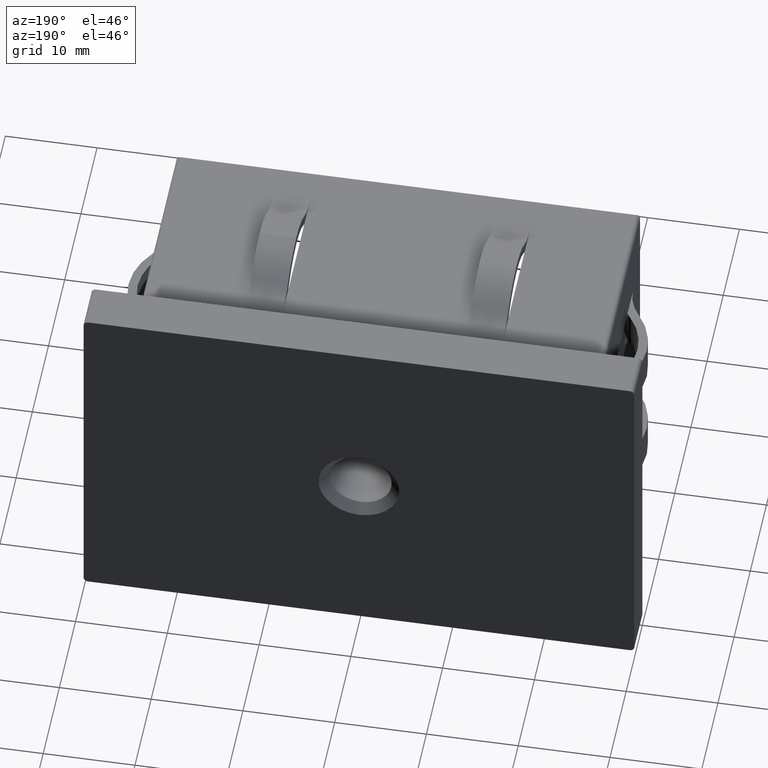
[diagram: clean part render]
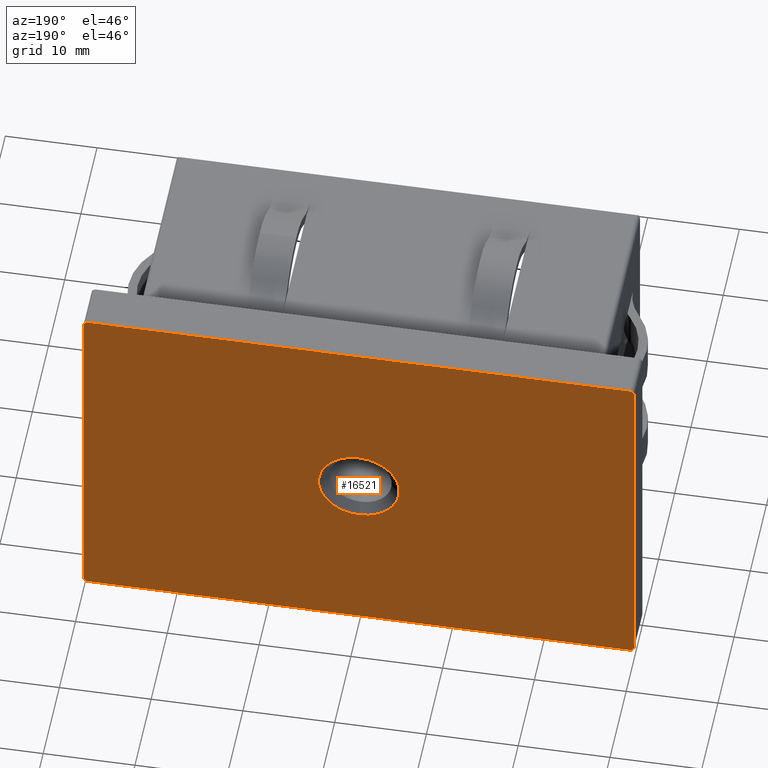
[diagram: same view with one face highlighted and labeled with its STEP entity id]
A machine part, auxiliary view. The second image highlights one B-rep face of the part: STEP entity #16521.
In plain terms, the highlighted planar face has unit normal (0, 1, 0).
Its self-contained STEP definition (entity closure, byte-faithful):
#38 = LINE ( 'NONE', #16694, #2755 ) ;
#179 = CIRCLE ( 'NONE', #4041, 4.399999999999973700 ) ;
#277 = DIRECTION ( 'NONE',  ( 0.0000000000000000000, 0.0000000000000000000, 1.000000000000000000 ) ) ;
#310 = DIRECTION ( 'NONE',  ( -1.734723475976807100E-016, -0.0000000000000000000, -1.000000000000000000 ) ) ;
#406 = LINE ( 'NONE', #16994, #10997 ) ;
#865 = DIRECTION ( 'NONE',  ( 0.0000000000000000000, 1.000000000000000000, 0.0000000000000000000 ) ) ;
#993 = ORIENTED_EDGE ( 'NONE', *, *, #12320, .T. ) ;
#1088 = DIRECTION ( 'NONE',  ( 1.734723475976807100E-016, 0.0000000000000000000, 1.000000000000000000 ) ) ;
#1309 = AXIS2_PLACEMENT_3D ( 'NONE', #6147, #14780, #277 ) ;
#1477 = VERTEX_POINT ( 'NONE', #7355 ) ;
#1671 = CARTESIAN_POINT ( 'NONE',  ( -29.99999999999998900, 5.000000000000000000, 20.00000000000000400 ) ) ;
#1796 = VERTEX_POINT ( 'NONE', #6829 ) ;
#2138 = EDGE_CURVE ( 'NONE', #14272, #13020, #4426, .T. ) ;
#2272 = CARTESIAN_POINT ( 'NONE',  ( -29.49999999999998900, 5.000000000000000000, 20.00000000000000400 ) ) ;
#2755 = VECTOR ( 'NONE', #1088, 1000.000000000000000 ) ;
#3721 = EDGE_CURVE ( 'NONE', #4588, #1796, #14063, .T. ) ;
#3891 = DIRECTION ( 'NONE',  ( 0.0000000000000000000, 0.0000000000000000000, 1.000000000000000000 ) ) ;
#4016 = CARTESIAN_POINT ( 'NONE',  ( 0.0000000000000000000, 5.000000000000000000, 0.0000000000000000000 ) ) ;
#4041 = AXIS2_PLACEMENT_3D ( 'NONE', #5281, #16830, #9675 ) ;
#4426 = CIRCLE ( 'NONE', #13336, 0.5000000000000004400 ) ;
#4567 = DIRECTION ( 'NONE',  ( 1.000000000000000000, 0.0000000000000000000, 0.0000000000000000000 ) ) ;
#4588 = VERTEX_POINT ( 'NONE', #10763 ) ;
#5094 = CARTESIAN_POINT ( 'NONE',  ( 29.50000000000000400, 5.000000000000000000, -19.49999999999999600 ) ) ;
#5113 = FACE_OUTER_BOUND ( 'NONE', #6790, .T. ) ;
#5224 = CIRCLE ( 'NONE', #17963, 4.399999999999973700 ) ;
#5281 = CARTESIAN_POINT ( 'NONE',  ( 0.0000000000000000000, 5.000000000000000000, 0.0000000000000000000 ) ) ;
#5712 = CIRCLE ( 'NONE', #15938, 0.5000000000000004400 ) ;
#5779 = ORIENTED_EDGE ( 'NONE', *, *, #13058, .T. ) ;
#5845 = EDGE_CURVE ( 'NONE', #12889, #16185, #15791, .T. ) ;
#5875 = ORIENTED_EDGE ( 'NONE', *, *, #5845, .T. ) ;
#6054 = CARTESIAN_POINT ( 'NONE',  ( 30.00000000000000000, 5.000000000000000000, -19.99999999999999600 ) ) ;
#6147 = CARTESIAN_POINT ( 'NONE',  ( -29.49999999999999600, 5.000000000000000000, -19.49999999999999600 ) ) ;
#6566 = DIRECTION ( 'NONE',  ( 0.0000000000000000000, 1.000000000000000000, 0.0000000000000000000 ) ) ;
#6790 = EDGE_LOOP ( 'NONE', ( #12555, #5779, #14990, #5875, #10433, #13966, #993, #13420 ) ) ;
#6805 = CARTESIAN_POINT ( 'NONE',  ( -29.49999999999998900, 5.000000000000000000, 19.50000000000000400 ) ) ;
#6814 = CARTESIAN_POINT ( 'NONE',  ( 29.50000000000000700, 5.000000000000000000, 20.00000000000000400 ) ) ;
#6829 = CARTESIAN_POINT ( 'NONE',  ( 30.00000000000000000, 5.000000000000000000, -19.49999999999999600 ) ) ;
#7095 = PLANE ( 'NONE',  #12239 ) ;
#7227 = LINE ( 'NONE', #1671, #12133 ) ;
#7355 = CARTESIAN_POINT ( 'NONE',  ( 29.50000000000000400, 5.000000000000000000, -19.99999999999999600 ) ) ;
#7401 = VERTEX_POINT ( 'NONE', #12238 ) ;
#7993 = CARTESIAN_POINT ( 'NONE',  ( -29.99999999999998900, 5.000000000000000000, 19.50000000000000400 ) ) ;
#8577 = ORIENTED_EDGE ( 'NONE', *, *, #14291, .T. ) ;
#8734 = CARTESIAN_POINT ( 'NONE',  ( 0.0000000000000000000, 5.000000000000000000, 0.0000000000000000000 ) ) ;
#9675 = DIRECTION ( 'NONE',  ( 0.0000000000000000000, 0.0000000000000000000, 1.000000000000000000 ) ) ;
#9783 = ORIENTED_EDGE ( 'NONE', *, *, #10791, .T. ) ;
#9826 = FACE_BOUND ( 'NONE', #15405, .T. ) ;
#9894 = EDGE_CURVE ( 'NONE', #18287, #4588, #5712, .T. ) ;
#10433 = ORIENTED_EDGE ( 'NONE', *, *, #10540, .T. ) ;
#10540 = EDGE_CURVE ( 'NONE', #16185, #14272, #38, .T. ) ;
#10763 = CARTESIAN_POINT ( 'NONE',  ( 30.00000000000000700, 5.000000000000000000, 19.50000000000000400 ) ) ;
#10780 = CIRCLE ( 'NONE', #10915, 0.5000000000000004400 ) ;
#10791 = EDGE_CURVE ( 'NONE', #11006, #7401, #5224, .T. ) ;
#10915 = AXIS2_PLACEMENT_3D ( 'NONE', #5094, #6566, #15176 ) ;
#10997 = VECTOR ( 'NONE', #11287, 1000.000000000000000 ) ;
#11006 = VERTEX_POINT ( 'NONE', #15271 ) ;
#11287 = DIRECTION ( 'NONE',  ( -1.000000000000000000, -0.0000000000000000000, -0.0000000000000000000 ) ) ;
#12133 = VECTOR ( 'NONE', #4567, 1000.000000000000000 ) ;
#12238 = CARTESIAN_POINT ( 'NONE',  ( 0.0000000000000000000, 5.000000000000000000, 4.399999999999973700 ) ) ;
#12239 = AXIS2_PLACEMENT_3D ( 'NONE', #8734, #17183, #14396 ) ;
#12320 = EDGE_CURVE ( 'NONE', #13020, #18287, #7227, .T. ) ;
#12452 = DIRECTION ( 'NONE',  ( -0.0000000000000000000, -1.000000000000000000, -0.0000000000000000000 ) ) ;
#12517 = DIRECTION ( 'NONE',  ( 0.0000000000000000000, 0.0000000000000000000, 1.000000000000000000 ) ) ;
#12555 = ORIENTED_EDGE ( 'NONE', *, *, #3721, .T. ) ;
#12805 = DIRECTION ( 'NONE',  ( 0.0000000000000000000, 1.000000000000000000, 0.0000000000000000000 ) ) ;
#12889 = VERTEX_POINT ( 'NONE', #13660 ) ;
#13020 = VERTEX_POINT ( 'NONE', #2272 ) ;
#13058 = EDGE_CURVE ( 'NONE', #1796, #1477, #10780, .T. ) ;
#13336 = AXIS2_PLACEMENT_3D ( 'NONE', #6805, #865, #12517 ) ;
#13420 = ORIENTED_EDGE ( 'NONE', *, *, #9894, .T. ) ;
#13660 = CARTESIAN_POINT ( 'NONE',  ( -29.49999999999999600, 5.000000000000000000, -19.99999999999999600 ) ) ;
#13758 = EDGE_CURVE ( 'NONE', #1477, #12889, #406, .T. ) ;
#13966 = ORIENTED_EDGE ( 'NONE', *, *, #2138, .T. ) ;
#14063 = LINE ( 'NONE', #6054, #14290 ) ;
#14272 = VERTEX_POINT ( 'NONE', #7993 ) ;
#14290 = VECTOR ( 'NONE', #310, 1000.000000000000000 ) ;
#14291 = EDGE_CURVE ( 'NONE', #7401, #11006, #179, .T. ) ;
#14396 = DIRECTION ( 'NONE',  ( 0.0000000000000000000, -0.0000000000000000000, 1.000000000000000000 ) ) ;
#14780 = DIRECTION ( 'NONE',  ( 0.0000000000000000000, 1.000000000000000000, 0.0000000000000000000 ) ) ;
#14990 = ORIENTED_EDGE ( 'NONE', *, *, #13758, .T. ) ;
#15176 = DIRECTION ( 'NONE',  ( 0.0000000000000000000, 0.0000000000000000000, 1.000000000000000000 ) ) ;
#15271 = CARTESIAN_POINT ( 'NONE',  ( 5.388445916248321500E-016, 5.000000000000000000, -4.399999999999973700 ) ) ;
#15405 = EDGE_LOOP ( 'NONE', ( #8577, #9783 ) ) ;
#15791 = CIRCLE ( 'NONE', #1309, 0.5000000000000004400 ) ;
#15938 = AXIS2_PLACEMENT_3D ( 'NONE', #17058, #12805, #18533 ) ;
#16185 = VERTEX_POINT ( 'NONE', #16420 ) ;
#16420 = CARTESIAN_POINT ( 'NONE',  ( -29.99999999999999600, 5.000000000000000000, -19.49999999999999600 ) ) ;
#16521 = ADVANCED_FACE ( 'NONE', ( #9826, #5113 ), #7095, .T. ) ;
#16694 = CARTESIAN_POINT ( 'NONE',  ( -29.99999999999999600, 5.000000000000000000, -19.99999999999999600 ) ) ;
#16830 = DIRECTION ( 'NONE',  ( -0.0000000000000000000, -1.000000000000000000, -0.0000000000000000000 ) ) ;
#16994 = CARTESIAN_POINT ( 'NONE',  ( -29.99999999999999600, 5.000000000000000000, -19.99999999999999600 ) ) ;
#17058 = CARTESIAN_POINT ( 'NONE',  ( 29.50000000000000700, 5.000000000000000000, 19.50000000000000400 ) ) ;
#17183 = DIRECTION ( 'NONE',  ( 0.0000000000000000000, 1.000000000000000000, 0.0000000000000000000 ) ) ;
#17963 = AXIS2_PLACEMENT_3D ( 'NONE', #4016, #12452, #3891 ) ;
#18287 = VERTEX_POINT ( 'NONE', #6814 ) ;
#18533 = DIRECTION ( 'NONE',  ( 0.0000000000000000000, 0.0000000000000000000, 1.000000000000000000 ) ) ;